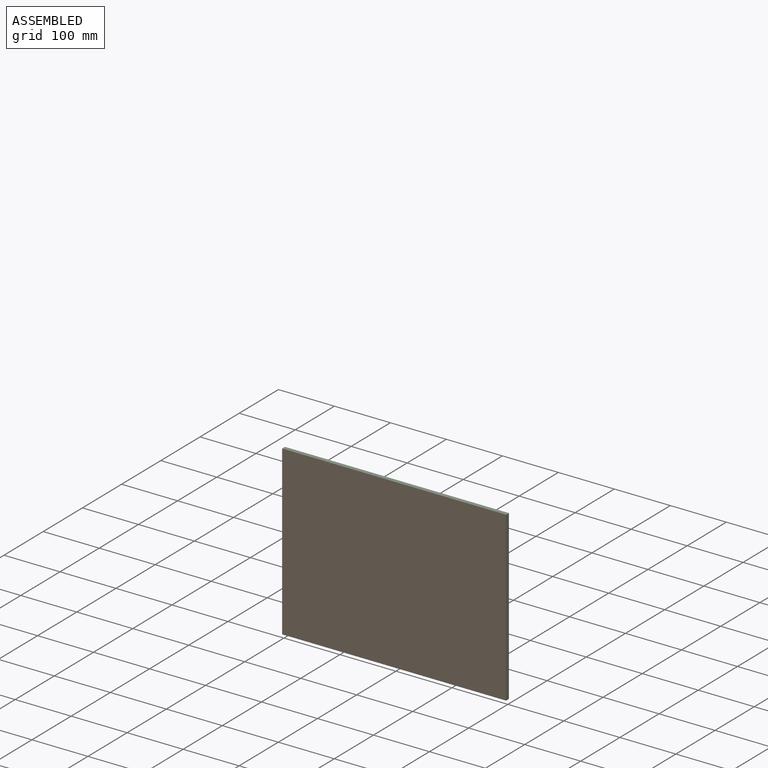
[diagram: assembled view]
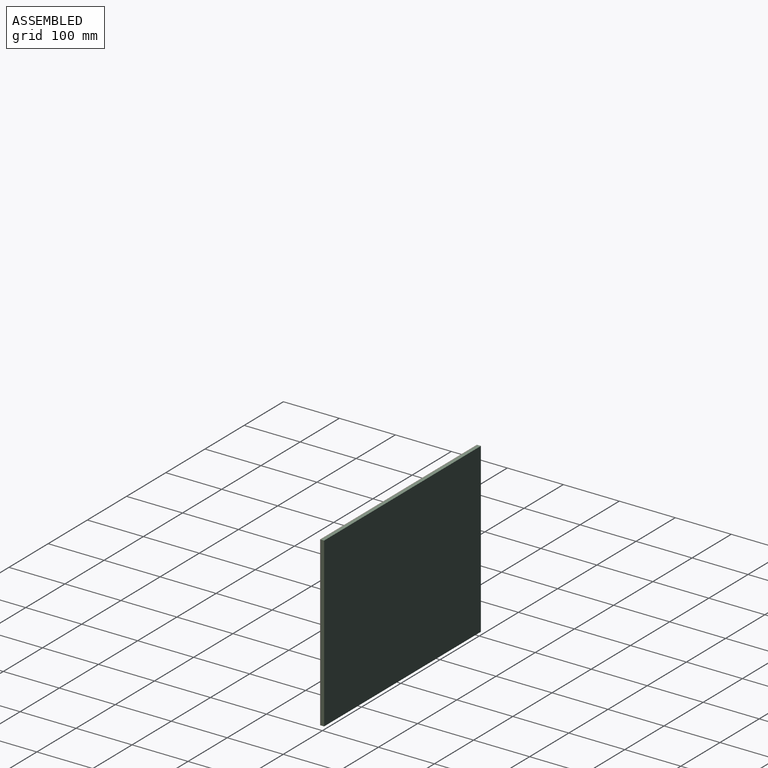
[diagram: assembled view, second angle]
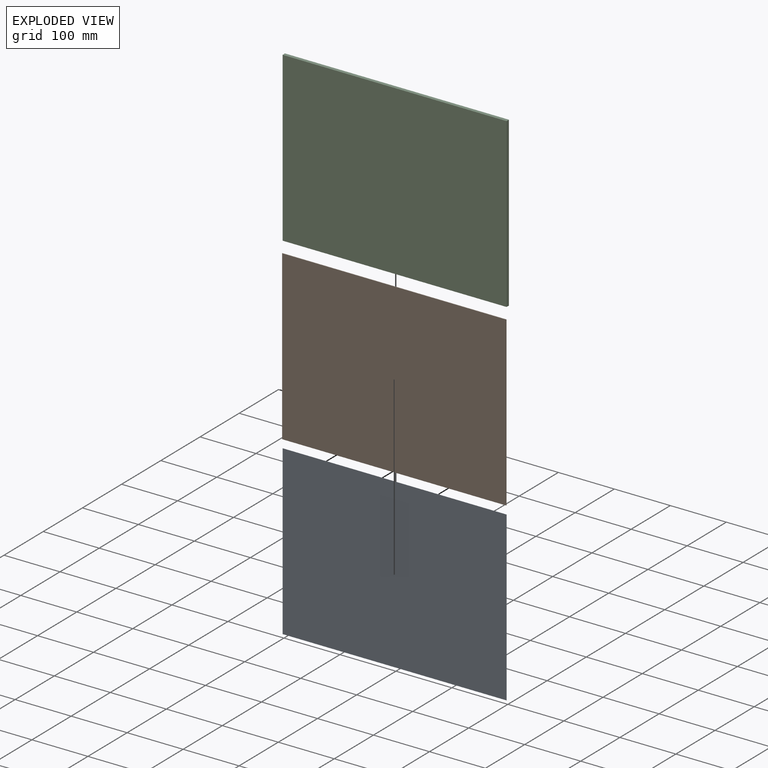
[diagram: exploded view]
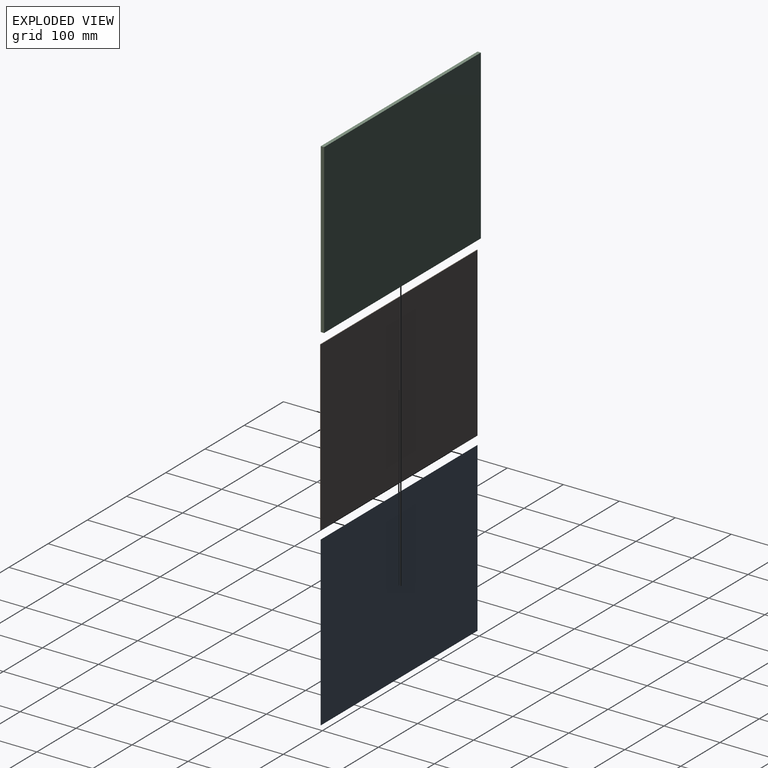
[diagram: exploded view, second angle]
ASSEMBLY  parts=3 mates=2
PART A: 6 faces, bbox 400x0.1x300 mm
  f0: plane 300x0.1mm, normal (1,0,0), area 30mm2, adj f1,f3,f4,f5
  f1: plane 400x0.1mm, normal (0,0,1), area 40mm2, adj f0,f2,f4,f5
  f2: plane 300x0.1mm, normal (-1,0,0), area 30mm2, adj f1,f3,f4,f5
  f3: plane 400x0.1mm, normal (0,0,-1), area 40mm2, adj f0,f2,f4,f5
  f4: plane 400x300mm, normal (0,-1,0), area 120000mm2, adj f0,f1,f2,f3
  f5: plane 400x300mm, normal (0,1,0), area 120000mm2, adj f0,f1,f2,f3
PART B: 6 faces, bbox 400x1.1x300 mm
  f0: plane 300x1.1mm, normal (1,0,0), area 330mm2, adj f1,f3,f4,f5
  f1: plane 400x1.1mm, normal (0,0,1), area 440mm2, adj f0,f2,f4,f5
  f2: plane 300x1.1mm, normal (-1,0,0), area 330mm2, adj f1,f3,f4,f5
  f3: plane 400x1.1mm, normal (0,0,-1), area 440mm2, adj f0,f2,f4,f5
  f4: plane 400x300mm, normal (0,-1,0), area 120000mm2, adj f0,f1,f2,f3
  f5: plane 400x300mm, normal (0,1,0), area 120000mm2, adj f0,f1,f2,f3
PART C: 6 faces, bbox 400x6x300 mm
  f0: plane 300x6mm, normal (1,0,0), area 1800mm2, adj f1,f3,f4,f5
  f1: plane 400x6mm, normal (0,0,1), area 2400mm2, adj f0,f2,f4,f5
  f2: plane 300x6mm, normal (-1,0,0), area 1800mm2, adj f1,f3,f4,f5
  f3: plane 400x6mm, normal (0,0,-1), area 2400mm2, adj f0,f2,f4,f5
  f4: plane 400x300mm, normal (0,-1,0), area 120000mm2, adj f0,f1,f2,f3
  f5: plane 400x300mm, normal (0,1,0), area 120000mm2, adj f0,f1,f2,f3
PLACE A t=(-0.14,-3.05,0.05)mm
PLACE B t=(-0.14,-3.15,3.98)mm
PLACE C t=(-0.14,2.95,0.05)mm
MATE parallel B.f3 <-> A.f3  axis (0,0,1) through (199.86,-3.15,-149.95)mm
MATE parallel A.f3 <-> C.f3  axis (0,0,1) through (199.86,-3.05,-149.95)mm
